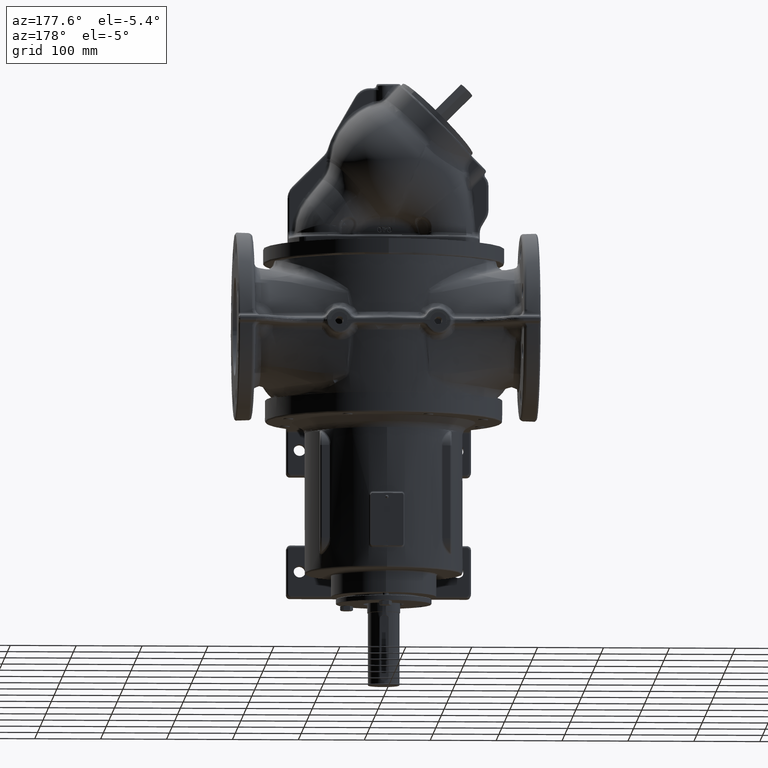
[diagram: clean part render]
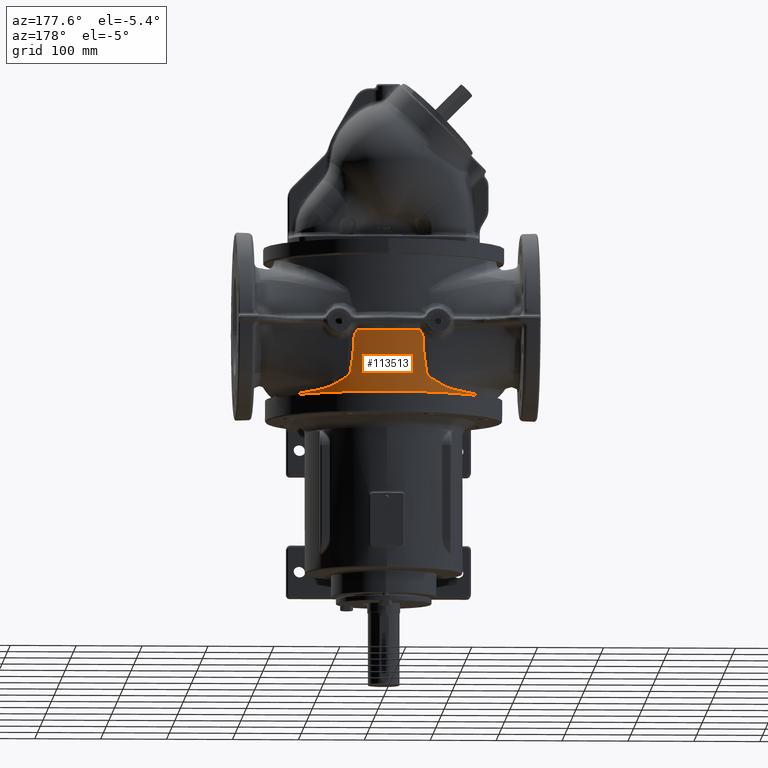
[diagram: same view with one face highlighted and labeled with its STEP entity id]
A machine part, auxiliary view. The second image highlights one B-rep face of the part: STEP entity #113513.
In plain terms, the highlighted conical surface has half-angle 2 deg.
Its self-contained STEP definition (entity closure, byte-faithful):
#27638=CARTESIAN_POINT('',(0.E0,1.E0,1.038140954703E2));
#27639=DIRECTION('',(0.E0,0.E0,-1.E0));
#27640=DIRECTION('',(-2.547546711434E-1,9.670057174240E-1,0.E0));
#27641=AXIS2_PLACEMENT_3D('',#27638,#27639,#27640);
#31481=CARTESIAN_POINT('',(-1.983678192828E-14,1.E0,1.039530150989E1));
#31482=DIRECTION('',(0.E0,0.E0,1.E0));
#31483=DIRECTION('',(8.221368527144E-1,5.692899045380E-1,0.E0));
#31484=AXIS2_PLACEMENT_3D('',#31481,#31482,#31483);
#31486=CARTESIAN_POINT('',(1.480677569481E2,1.035297416253E2,1.039530148832E1));
#31487=CARTESIAN_POINT('',(1.475254251751E2,1.043163096943E2,1.045011644710E1));
#31488=CARTESIAN_POINT('',(1.464255984966E2,1.058849517762E2,1.056487105650E1));
#31489=CARTESIAN_POINT('',(1.447297417778E2,1.082239979203E2,1.075141209266E1));
#31490=CARTESIAN_POINT('',(1.429887079367E2,1.105465706329E2,1.095118031200E1));
#31491=CARTESIAN_POINT('',(1.412031212214E2,1.128507335465E2,1.116290957452E1));
#31492=CARTESIAN_POINT('',(1.393738157057E2,1.151344156543E2,1.138523434629E1));
#31493=CARTESIAN_POINT('',(1.375015835489E2,1.173957472333E2,1.16167441E1));
#31494=CARTESIAN_POINT('',(1.355878148873E2,1.196323048213E2,1.185603792101E1));
#31495=CARTESIAN_POINT('',(1.336342347828E2,1.218415041888E2,1.210163413822E1));
#31496=CARTESIAN_POINT('',(1.316427251275E2,1.240208332420E2,1.235199499890E1));
#31497=CARTESIAN_POINT('',(1.296148119104E2,1.261683933788E2,1.260566304274E1));
#31498=CARTESIAN_POINT('',(1.275518587531E2,1.282826163366E2,1.286119038427E1));
#31499=CARTESIAN_POINT('',(1.254552200898E2,1.303620759715E2,1.311714088273E1));
#31500=CARTESIAN_POINT('',(1.233268884600E2,1.324048502695E2,1.337191475140E1));
#31501=CARTESIAN_POINT('',(1.211703711385E2,1.344078276879E2,1.362364606193E1));
#31502=CARTESIAN_POINT('',(1.189891294969E2,1.363683052550E2,1.387053268512E1));
#31503=CARTESIAN_POINT('',(1.167868146445E2,1.382837361549E2,1.411080359380E1));
#31504=CARTESIAN_POINT('',(1.145673085351E2,1.401517053443E2,1.434266370049E1));
#31505=CARTESIAN_POINT('',(1.123342568439E2,1.419703091595E2,1.456442796250E1));
#31506=CARTESIAN_POINT('',(1.108400057983E2,1.431478778889E2,1.470441007764E1));
#31507=CARTESIAN_POINT('',(1.100914868615E2,1.437282395486E2,1.477225259317E1));
#31509=CARTESIAN_POINT('',(8.055882184666E1,1.625763469896E2,2.311745866726E1));
#31510=CARTESIAN_POINT('',(8.131507298108E1,1.621836218744E2,2.273302371922E1));
#31511=CARTESIAN_POINT('',(8.275077548599E1,1.614253901205E2,2.196177772762E1));
#31512=CARTESIAN_POINT('',(8.475388651841E1,1.603387533791E2,2.104211972987E1));
#31513=CARTESIAN_POINT('',(8.662159114706E1,1.592978074730E2,2.021455266633E1));
#31514=CARTESIAN_POINT('',(8.840467220058E1,1.582792774497E2,1.948108953620E1));
#31515=CARTESIAN_POINT('',(9.013431535941E1,1.572680031810E2,1.882757197411E1));
#31516=CARTESIAN_POINT('',(9.185052297801E1,1.562418505250E2,1.824271503008E1));
#31517=CARTESIAN_POINT('',(9.360474118563E1,1.551690303805E2,1.770888971328E1));
#31518=CARTESIAN_POINT('',(9.543309044908E1,1.540241415001E2,1.721283646957E1));
#31519=CARTESIAN_POINT('',(9.735224283735E1,1.527916814392E2,1.674776617221E1));
#31520=CARTESIAN_POINT('',(9.932231177402E1,1.514924370408E2,1.632306911762E1));
#31521=CARTESIAN_POINT('',(1.012967892269E2,1.501547850942E2,1.594630131844E1));
#31522=CARTESIAN_POINT('',(1.032988003231E2,1.487614464470E2,1.560817499036E1));
#31523=CARTESIAN_POINT('',(1.053946984194E2,1.472615427189E2,1.529860498925E1));
#31524=CARTESIAN_POINT('',(1.076324282701E2,1.456120783909E2,1.501738097370E1));
#31525=CARTESIAN_POINT('',(1.092532629016E2,1.443781816296E2,1.484807868871E1));
#31526=CARTESIAN_POINT('',(1.100914868615E2,1.437282395486E2,1.477225259317E1));
#31528=CARTESIAN_POINT('',(6.374748088998E1,1.702680362641E2,3.251745815103E1));
#31529=CARTESIAN_POINT('',(6.540327731379E1,1.696064177949E2,3.147938043612E1));
#31530=CARTESIAN_POINT('',(6.888128729677E1,1.681620579315E2,2.942776280903E1));
#31531=CARTESIAN_POINT('',(7.450817490414E1,1.656182689971E2,2.631874500572E1));
#31532=CARTESIAN_POINT('',(7.849659268437E1,1.636465370573E2,2.417249091886E1));
#31533=CARTESIAN_POINT('',(8.055882184666E1,1.625763469896E2,2.311745866726E1));
#31535=CARTESIAN_POINT('',(5.773962194131E1,1.727317103777E2,4.124746156192E1));
#31536=CARTESIAN_POINT('',(5.801266371584E1,1.725900490345E2,3.989916685164E1));
#31537=CARTESIAN_POINT('',(5.891232780437E1,1.721976798242E2,3.747808543130E1));
#31538=CARTESIAN_POINT('',(6.113211746077E1,1.713066974254E2,3.441529400483E1));
#31539=CARTESIAN_POINT('',(6.284160494442E1,1.706303691549E2,3.309180012906E1));
#31540=CARTESIAN_POINT('',(6.374748088998E1,1.702680362641E2,3.251745815103E1));
#31542=CARTESIAN_POINT('',(5.192808448892E1,1.766150221783E2,9.717564902286E1));
#31543=CARTESIAN_POINT('',(5.199100973622E1,1.765252758445E2,9.522208739680E1));
#31544=CARTESIAN_POINT('',(5.213746193321E1,1.763421405349E2,9.138563459151E1));
#31545=CARTESIAN_POINT('',(5.241563476062E1,1.760567221258E2,8.583014945750E1));
#31546=CARTESIAN_POINT('',(5.274621954E1,1.757634427221E2,8.051162000434E1));
#31547=CARTESIAN_POINT('',(5.312246217119E1,1.754649930536E2,7.545744714109E1));
#31548=CARTESIAN_POINT('',(5.353754782262E1,1.751636708833E2,7.068279033932E1));
#31549=CARTESIAN_POINT('',(5.398661039667E1,1.748601858900E2,6.617449639500E1));
#31550=CARTESIAN_POINT('',(5.446516740182E1,1.745554186656E2,6.192645775070E1));
#31551=CARTESIAN_POINT('',(5.496739228963E1,1.742508159476E2,5.793521641562E1));
#31552=CARTESIAN_POINT('',(5.548917943011E1,1.739470951982E2,5.419055203639E1));
#31553=CARTESIAN_POINT('',(5.602789439394E1,1.736440543794E2,5.066887447010E1));
#31554=CARTESIAN_POINT('',(5.658200728238E1,1.733412139117E2,4.734812925083E1));
#31555=CARTESIAN_POINT('',(5.715128325884E1,1.730377731626E2,4.420871877768E1));
#31556=CARTESIAN_POINT('',(5.754221153645E1,1.728337934608E2,4.221673906877E1));
#31557=CARTESIAN_POINT('',(5.773962194131E1,1.727317103777E2,4.124746156192E1));
#31559=CARTESIAN_POINT('',(5.192808448892E1,1.766150221783E2,9.717564902286E1));
#31560=CARTESIAN_POINT('',(5.177350184140E1,1.766667515999E2,9.734097800989E1));
#31561=CARTESIAN_POINT('',(5.146773098381E1,1.767689050012E2,9.767579429879E1));
#31562=CARTESIAN_POINT('',(5.101913650876E1,1.769183547516E2,9.819080241780E1));
#31563=CARTESIAN_POINT('',(5.058134391587E1,1.770638738523E2,9.871794011660E1));
#31564=CARTESIAN_POINT('',(5.015485106335E1,1.772053961053E2,9.925678754944E1));
#31565=CARTESIAN_POINT('',(4.974017073229E1,1.773428498915E2,9.980682952100E1));
#31566=CARTESIAN_POINT('',(4.933774450757E1,1.774761863565E2,1.003675584492E2));
#31567=CARTESIAN_POINT('',(4.894800440633E1,1.776053596805E2,1.009384406972E2));
#31568=CARTESIAN_POINT('',(4.857135100216E1,1.777303336431E2,1.015189418427E2));
#31569=CARTESIAN_POINT('',(4.820816380848E1,1.778510745133E2,1.021084265038E2));
#31570=CARTESIAN_POINT('',(4.785876464538E1,1.779675660596E2,1.027063183916E2));
#31571=CARTESIAN_POINT('',(4.763533142734E1,1.780423503331E2,1.031099247003E2));
#31572=CARTESIAN_POINT('',(4.752595895074E1,1.780790480567E2,1.033130237375E2));
#31574=CARTESIAN_POINT('',(4.752595895074E1,1.780790480567E2,1.033130237375E2));
#31575=CARTESIAN_POINT('',(4.751677297235E1,1.780821301960E2,1.033300809155E2));
#31576=CARTESIAN_POINT('',(4.749748247342E1,1.780885165351E2,1.033635621876E2));
#31577=CARTESIAN_POINT('',(4.746573501451E1,1.780987798287E2,1.034119970748E2));
#31578=CARTESIAN_POINT('',(4.743136194723E1,1.781096636263E2,1.034583184133E2));
#31579=CARTESIAN_POINT('',(4.739450848656E1,1.781211211541E2,1.035023527401E2));
#31580=CARTESIAN_POINT('',(4.735535238567E1,1.781330962627E2,1.035439074399E2));
#31581=CARTESIAN_POINT('',(4.731406024354E1,1.781455376551E2,1.035828395951E2));
#31582=CARTESIAN_POINT('',(4.727077835755E1,1.781584011299E2,1.036190504092E2));
#31583=CARTESIAN_POINT('',(4.722565121060E1,1.781716426945E2,1.036524312992E2));
#31584=CARTESIAN_POINT('',(4.717886356410E1,1.781852079985E2,1.036828811739E2));
#31585=CARTESIAN_POINT('',(4.713060382825E1,1.781990418532E2,1.037102980772E2));
#31586=CARTESIAN_POINT('',(4.708104296526E1,1.782130952589E2,1.037346180038E2));
#31587=CARTESIAN_POINT('',(4.703033092999E1,1.782273257668E2,1.037557990995E2));
#31588=CARTESIAN_POINT('',(4.697861159970E1,1.782416922683E2,1.037737877827E2));
#31589=CARTESIAN_POINT('',(4.692610012887E1,1.782561350336E2,1.037885328667E2));
#31590=CARTESIAN_POINT('',(4.687301409556E1,1.782705943255E2,1.037999933297E2));
#31591=CARTESIAN_POINT('',(4.681958260547E1,1.782850083525E2,1.038081479508E2));
#31592=CARTESIAN_POINT('',(4.676602436064E1,1.782993199298E2,1.038130191186E2));
#31593=CARTESIAN_POINT('',(4.673044720526E1,1.783087371647E2,1.038140948897E2));
#31594=CARTESIAN_POINT('',(4.671267307228E1,1.783134197275E2,1.038140954789E2));
#31596=CARTESIAN_POINT('',(-4.671267306739E1,1.783134197289E2,
1.038140954806E2));
#31597=CARTESIAN_POINT('',(-4.673055797267E1,1.783087079939E2,
1.038140951732E2));
#31598=CARTESIAN_POINT('',(-4.676633350192E1,1.782992380467E2,
1.038130088858E2));
#31599=CARTESIAN_POINT('',(-4.682012239985E1,1.782848638550E2,
1.038080936270E2));
#31600=CARTESIAN_POINT('',(-4.687371002527E1,1.782704057847E2,
1.037998676824E2));
#31601=CARTESIAN_POINT('',(-4.692689186124E1,1.782559183161E2,
1.037883356950E2));
#31602=CARTESIAN_POINT('',(-4.697943729076E1,1.782414640582E2,
1.037735288262E2));
#31603=CARTESIAN_POINT('',(-4.703113682648E1,1.782271006340E2,
1.037554871508E2));
#31604=CARTESIAN_POINT('',(-4.708184815095E1,1.782128682649E2,
1.037342561187E2));
#31605=CARTESIAN_POINT('',(-4.713141943380E1,1.781988093681E2,
1.037098676723E2));
#31606=CARTESIAN_POINT('',(-4.717967348345E1,1.781849744482E2,
1.036823861166E2));
#31607=CARTESIAN_POINT('',(-4.722642039750E1,1.781714183889E2,
1.036518981212E2));
#31608=CARTESIAN_POINT('',(-4.727148031824E1,1.781581936197E2,
1.036184915018E2));
#31609=CARTESIAN_POINT('',(-4.731470833086E1,1.781453437798E2,
1.035822649231E2));
#31610=CARTESIAN_POINT('',(-4.735595385195E1,1.781329137095E2,
1.035433057413E2));
#31611=CARTESIAN_POINT('',(-4.739504130963E1,1.781209568121E2,
1.035017507821E2));
#31612=CARTESIAN_POINT('',(-4.743179228203E1,1.781095285662E2,
1.034577706124E2));
#31613=CARTESIAN_POINT('',(-4.746603428200E1,1.780986834408E2,
1.034115498460E2));
#31614=CARTESIAN_POINT('',(-4.749763777131E1,1.780884651770E2,
1.033632940073E2));
#31615=CARTESIAN_POINT('',(-4.751682546319E1,1.780821125637E2,
1.033299829105E2));
#31616=CARTESIAN_POINT('',(-4.752595887562E1,1.780790480816E2,
1.033130238744E2));
#31618=CARTESIAN_POINT('',(-4.752595887562E1,1.780790480816E2,
1.033130238744E2));
#31619=CARTESIAN_POINT('',(-4.763533788234E1,1.780423481684E2,
1.031099127300E2));
#31620=CARTESIAN_POINT('',(-4.785878365166E1,1.779675597053E2,
1.027062844798E2));
#31621=CARTESIAN_POINT('',(-4.820819923636E1,1.778510627163E2,
1.021083670771E2));
#31622=CARTESIAN_POINT('',(-4.857140006003E1,1.777303173497E2,
1.015188639764E2));
#31623=CARTESIAN_POINT('',(-4.894806384944E1,1.776053399701E2,
1.009383512284E2));
#31624=CARTESIAN_POINT('',(-4.933781063247E1,1.774761644471E2,
1.003674639465E2));
#31625=CARTESIAN_POINT('',(-4.974023931947E1,1.773428271650E2,
9.980673634998E1));
#31626=CARTESIAN_POINT('',(-5.015491740113E1,1.772053741065E2,
9.925670183042E1));
#31627=CARTESIAN_POINT('',(-5.058140280302E1,1.770638542945E2,
9.871786770955E1));
#31628=CARTESIAN_POINT('',(-5.101918230941E1,1.769183395068E2,
9.819074886672E1));
#31629=CARTESIAN_POINT('',(-5.146775764960E1,1.767688960971E2,
9.767576477870E1));
#31630=CARTESIAN_POINT('',(-5.177351146285E1,1.766667483815E2,
9.734096772194E1));
#31631=CARTESIAN_POINT('',(-5.192808444382E1,1.766150221959E2,
9.717564908023E1));
#31633=CARTESIAN_POINT('',(-5.192808444382E1,1.766150221959E2,
9.717564908023E1));
#31634=CARTESIAN_POINT('',(-5.199100865229E1,1.765252771029E2,
9.522211314907E1));
#31635=CARTESIAN_POINT('',(-5.213745862597E1,1.763421432213E2,
9.138568128614E1));
#31636=CARTESIAN_POINT('',(-5.241563907538E1,1.760567185604E2,
8.583008688518E1));
#31637=CARTESIAN_POINT('',(-5.274623019001E1,1.757634335472E2,
8.051145648567E1));
#31638=CARTESIAN_POINT('',(-5.312247312148E1,1.754649862223E2,
7.545735151603E1));
#31639=CARTESIAN_POINT('',(-5.353755045229E1,1.751636683080E2,
7.068274210210E1));
#31640=CARTESIAN_POINT('',(-5.398661339922E1,1.748601841947E2,
6.617447554788E1));
#31641=CARTESIAN_POINT('',(-5.446516149988E1,1.745554223057E2,
6.192650725140E1));
#31642=CARTESIAN_POINT('',(-5.496736138390E1,1.742508345626E2,
5.793545766112E1));
#31643=CARTESIAN_POINT('',(-5.548913112438E1,1.739471238244E2,
5.419091058176E1));
#31644=CARTESIAN_POINT('',(-5.602782820294E1,1.736440900685E2,
5.066926198338E1));
#31645=CARTESIAN_POINT('',(-5.658194146762E1,1.733412479593E2,
4.734846683266E1));
#31646=CARTESIAN_POINT('',(-5.715124838208E1,1.730377926274E2,
4.420893238991E1));
#31647=CARTESIAN_POINT('',(-5.754218049347E1,1.728338066560E2,
4.221681417840E1));
#31648=CARTESIAN_POINT('',(-5.773960682088E1,1.727317153197E2,
4.124745771574E1));
#31650=CARTESIAN_POINT('',(-5.773960682088E1,1.727317153197E2,
4.124745771574E1));
#31651=CARTESIAN_POINT('',(-5.785159671893E1,1.726737593155E2,
4.069648813520E1));
#31652=CARTESIAN_POINT('',(-5.813357664477E1,1.725406124422E2,
3.966349411794E1));
#31653=CARTESIAN_POINT('',(-5.865374993676E1,1.723148471576E2,
3.834400614851E1));
#31654=CARTESIAN_POINT('',(-5.927584224220E1,1.720559057838E2,
3.713023637532E1));
#31655=CARTESIAN_POINT('',(-6.005490888181E1,1.717394772185E2,
3.591952534038E1));
#31656=CARTESIAN_POINT('',(-6.104607843995E1,1.713432106586E2,
3.471088666091E1));
#31657=CARTESIAN_POINT('',(-6.222743484413E1,1.708722427828E2,
3.353963052617E1));
#31658=CARTESIAN_POINT('',(-6.321506713741E1,1.704807741170E2,
3.285213719584E1));
#31659=CARTESIAN_POINT('',(-6.374715387076E1,1.702681636879E2,
3.251757419483E1));
#31661=CARTESIAN_POINT('',(-6.374715387076E1,1.702681636879E2,
3.251757419483E1));
#31662=CARTESIAN_POINT('',(-6.540450966600E1,1.696059275176E2,
3.147851957847E1));
#31663=CARTESIAN_POINT('',(-6.888354604011E1,1.681610849221E2,
2.942650159443E1));
#31664=CARTESIAN_POINT('',(-7.451035538682E1,1.656172257307E2,
2.631757886256E1));
#31665=CARTESIAN_POINT('',(-7.849750461193E1,1.636460637931E2,
2.417201130123E1));
#31666=CARTESIAN_POINT('',(-8.055882131247E1,1.625763466446E2,
2.311744301201E1));
#31668=CARTESIAN_POINT('',(-8.055882131247E1,1.625763466446E2,
2.311744301201E1));
#31669=CARTESIAN_POINT('',(-8.133799609739E1,1.621717292303E2,
2.272119184284E1));
#31670=CARTESIAN_POINT('',(-8.281923583750E1,1.613891205195E2,
2.192805476090E1));
#31671=CARTESIAN_POINT('',(-8.488986067728E1,1.602642439052E2,
2.097978425462E1));
#31672=CARTESIAN_POINT('',(-8.682291973828E1,1.591843800301E2,
2.012816038829E1));
#31673=CARTESIAN_POINT('',(-8.868225720779E1,1.581189883715E2,
1.937083196365E1));
#31674=CARTESIAN_POINT('',(-9.052939133449E1,1.570344686375E2,
1.868540414858E1));
#31675=CARTESIAN_POINT('',(-9.241298133441E1,1.559013946238E2,
1.806251000114E1));
#31676=CARTESIAN_POINT('',(-9.437124231962E1,1.546933916460E2,
1.749220163586E1));
#31677=CARTESIAN_POINT('',(-9.640815341380E1,1.534028566963E2,
1.696847103329E1));
#31678=CARTESIAN_POINT('',(-9.849745450261E1,1.520414178178E2,
1.649362681526E1));
#31679=CARTESIAN_POINT('',(-1.005816421336E2,1.506440825526E2,
1.607666961097E1));
#31680=CARTESIAN_POINT('',(-1.026895275383E2,1.491905010173E2,
1.570547957992E1));
#31681=CARTESIAN_POINT('',(-1.048693741390E2,1.476415556186E2,
1.537217115510E1));
#31682=CARTESIAN_POINT('',(-1.068665094724E2,1.461794482496E2,
1.511032623532E1));
#31683=CARTESIAN_POINT('',(-1.085951117851E2,1.448811250791E2,
1.491635608757E1));
#31684=CARTESIAN_POINT('',(-1.096165597991E2,1.440965197178E2,
1.481531184987E1));
#31685=CARTESIAN_POINT('',(-1.100914874271E2,1.437282392196E2,
1.477225502440E1));
#31687=CARTESIAN_POINT('',(-1.480677568235E2,1.035297416450E2,
1.039530148410E1));
#31688=CARTESIAN_POINT('',(-1.475254017238E2,1.043163437073E2,
1.045012093836E1));
#31689=CARTESIAN_POINT('',(-1.464255299160E2,1.058850492684E2,
1.056488296006E1));
#31690=CARTESIAN_POINT('',(-1.447296132239E2,1.082241733085E2,
1.075142990404E1));
#31691=CARTESIAN_POINT('',(-1.429885196765E2,1.105468184127E2,
1.095120098580E1));
#31692=CARTESIAN_POINT('',(-1.412028643977E2,1.128510603352E2,
1.116293762990E1));
#31693=CARTESIAN_POINT('',(-1.393734709646E2,1.151348402732E2,
1.138527648045E1));
#31694=CARTESIAN_POINT('',(-1.375011185581E2,1.173963014821E2,
1.161680567535E1));
#31695=CARTESIAN_POINT('',(-1.355872097249E2,1.196330023980E2,
1.185611728028E1));
#31696=CARTESIAN_POINT('',(-1.336334828012E2,1.218423422593E2,
1.210172959932E1));
#31697=CARTESIAN_POINT('',(-1.316418348360E2,1.240217930486E2,
1.235210235185E1));
#31698=CARTESIAN_POINT('',(-1.296137474946E2,1.261695036568E2,
1.260578702253E1));
#31699=CARTESIAN_POINT('',(-1.275505933105E2,1.282838943118E2,
1.286133768502E1));
#31700=CARTESIAN_POINT('',(-1.254536783249E2,1.303635824601E2,
1.311732908378E1));
#31701=CARTESIAN_POINT('',(-1.233252176858E2,1.324064284535E2,
1.337212108622E1));
#31702=CARTESIAN_POINT('',(-1.211687078081E2,1.344093471797E2,
1.362385176587E1));
#31703=CARTESIAN_POINT('',(-1.189875969357E2,1.363696592234E2,
1.387072347995E1));
#31704=CARTESIAN_POINT('',(-1.167855212185E2,1.382848409104E2,
1.411096397200E1));
#31705=CARTESIAN_POINT('',(-1.145663538701E2,1.401524930214E2,
1.434277770137E1));
#31706=CARTESIAN_POINT('',(-1.123337331306E2,1.419707244139E2,
1.456448503703E1));
#31707=CARTESIAN_POINT('',(-1.108398226724E2,1.431480210884E2,
1.470443196242E1));
#31708=CARTESIAN_POINT('',(-1.100914874271E2,1.437282392196E2,
1.477225502440E1));
#66954=VERTEX_POINT('',#31509);
#66955=VERTEX_POINT('',#31526);
#66957=VERTEX_POINT('',#31528);
#66958=VERTEX_POINT('',#31535);
#66970=VERTEX_POINT('',#31668);
#66971=VERTEX_POINT('',#31685);
#66972=VERTEX_POINT('',#31661);
#66973=VERTEX_POINT('',#31650);
#66974=VERTEX_POINT('',#31542);
#66975=VERTEX_POINT('',#31633);
#66980=CARTESIAN_POINT('',(1.480677565860E2,1.035297415311E2,1.039530150989E1));
#66981=CARTESIAN_POINT('',(-1.480677565232E2,1.035297416218E2,
1.039530150989E1));
#66982=VERTEX_POINT('',#66980);
#66983=VERTEX_POINT('',#66981);
#67193=VERTEX_POINT('',#31574);
#67194=VERTEX_POINT('',#31594);
#67355=VERTEX_POINT('',#31596);
#67356=VERTEX_POINT('',#31616);
#113476=CARTESIAN_POINT('',(-1.411653057791E-14,1.E0,5.710469849151E1));
#113477=DIRECTION('',(0.E0,0.E0,1.E0));
#113478=DIRECTION('',(1.E0,0.E0,0.E0));
#113479=AXIS2_PLACEMENT_3D('',#113476,#113477,#113478);
#113480=CONICAL_SURFACE('',#113479,1.817322342417E2,2.E0);
#113482=ORIENTED_EDGE('',*,*,#113481,.F.);
#113484=ORIENTED_EDGE('',*,*,#113483,.T.);
#113486=ORIENTED_EDGE('',*,*,#113485,.F.);
#113488=ORIENTED_EDGE('',*,*,#113487,.F.);
#113490=ORIENTED_EDGE('',*,*,#113489,.F.);
#113491=ORIENTED_EDGE('',*,*,#113466,.F.);
#113493=ORIENTED_EDGE('',*,*,#113492,.T.);
#113495=ORIENTED_EDGE('',*,*,#113494,.T.);
#113496=ORIENTED_EDGE('',*,*,#111445,.F.);
#113498=ORIENTED_EDGE('',*,*,#113497,.T.);
#113500=ORIENTED_EDGE('',*,*,#113499,.T.);
#113502=ORIENTED_EDGE('',*,*,#113501,.T.);
#113504=ORIENTED_EDGE('',*,*,#113503,.T.);
#113506=ORIENTED_EDGE('',*,*,#113505,.T.);
#113508=ORIENTED_EDGE('',*,*,#113507,.T.);
#113510=ORIENTED_EDGE('',*,*,#113509,.F.);
#113511=EDGE_LOOP('',(#113482,#113484,#113486,#113488,#113490,#113491,#113493,
#113495,#113496,#113498,#113500,#113502,#113504,#113506,#113508,#113510));
#113512=FACE_OUTER_BOUND('',#113511,.F.);
#113513=ADVANCED_FACE('',(#113512),#113480,.T.);
#27642=CIRCLE('',#27641,1.833633623034E2);
#31485=CIRCLE('',#31484,1.801011061566E2);
#31508=B_SPLINE_CURVE_WITH_KNOTS('',3,(#31486,#31487,#31488,#31489,#31490,
#31491,#31492,#31493,#31494,#31495,#31496,#31497,#31498,#31499,#31500,#31501,
#31502,#31503,#31504,#31505,#31506,#31507),.UNSPECIFIED.,.F.,.F.,(4,1,1,1,1,1,1,
1,1,1,1,1,1,1,1,1,1,1,1,4),(0.E0,5.263157894737E-2,1.052631578947E-1,
1.578947368421E-1,2.105263157895E-1,2.631578947368E-1,3.157894736842E-1,
3.684210526316E-1,4.210526315789E-1,4.736842105263E-1,5.263157894737E-1,
5.789473684211E-1,6.315789473684E-1,6.842105263158E-1,7.368421052632E-1,
7.894736842105E-1,8.421052631579E-1,8.947368421053E-1,9.473684210526E-1,1.E0),
.UNSPECIFIED.);
#31527=B_SPLINE_CURVE_WITH_KNOTS('',3,(#31509,#31510,#31511,#31512,#31513,
#31514,#31515,#31516,#31517,#31518,#31519,#31520,#31521,#31522,#31523,#31524,
#31525,#31526),.UNSPECIFIED.,.F.,.F.,(4,1,1,1,1,1,1,1,1,1,1,1,1,1,1,4),(0.E0,
6.666666666667E-2,1.333333333333E-1,2.E-1,2.666666666667E-1,3.333333333333E-1,
4.E-1,4.666666666667E-1,5.333333333333E-1,6.E-1,6.666666666667E-1,
7.333333333333E-1,8.E-1,8.666666666667E-1,9.333333333333E-1,1.E0),
.UNSPECIFIED.);
#31534=B_SPLINE_CURVE_WITH_KNOTS('',3,(#31528,#31529,#31530,#31531,#31532,
#31533),.UNSPECIFIED.,.F.,.F.,(4,1,1,4),(0.E0,3.333333333333E-1,
6.666666666667E-1,1.E0),.UNSPECIFIED.);
#31541=B_SPLINE_CURVE_WITH_KNOTS('',3,(#31535,#31536,#31537,#31538,#31539,
#31540),.UNSPECIFIED.,.F.,.F.,(4,1,1,4),(0.E0,3.333333333333E-1,
6.666666666667E-1,1.E0),.UNSPECIFIED.);
#31558=B_SPLINE_CURVE_WITH_KNOTS('',3,(#31542,#31543,#31544,#31545,#31546,
#31547,#31548,#31549,#31550,#31551,#31552,#31553,#31554,#31555,#31556,#31557),
.UNSPECIFIED.,.F.,.F.,(4,1,1,1,1,1,1,1,1,1,1,1,1,4),(0.E0,7.692307692308E-2,
1.538461538462E-1,2.307692307692E-1,3.076923076923E-1,3.846153846154E-1,
4.615384615385E-1,5.384615384615E-1,6.153846153846E-1,6.923076923077E-1,
7.692307692308E-1,8.461538461538E-1,9.230769230769E-1,1.E0),.UNSPECIFIED.);
#31573=B_SPLINE_CURVE_WITH_KNOTS('',3,(#31559,#31560,#31561,#31562,#31563,
#31564,#31565,#31566,#31567,#31568,#31569,#31570,#31571,#31572),.UNSPECIFIED.,
.F.,.F.,(4,1,1,1,1,1,1,1,1,1,1,4),(0.E0,9.090909090909E-2,1.818181818182E-1,
2.727272727273E-1,3.636363636364E-1,4.545454545455E-1,5.454545454545E-1,
6.363636363636E-1,7.272727272727E-1,8.181818181818E-1,9.090909090909E-1,1.E0),
.UNSPECIFIED.);
#31595=B_SPLINE_CURVE_WITH_KNOTS('',3,(#31574,#31575,#31576,#31577,#31578,
#31579,#31580,#31581,#31582,#31583,#31584,#31585,#31586,#31587,#31588,#31589,
#31590,#31591,#31592,#31593,#31594),.UNSPECIFIED.,.F.,.F.,(4,1,1,1,1,1,1,1,1,1,
1,1,1,1,1,1,1,1,4),(0.E0,5.555555555556E-2,1.111111111111E-1,1.666666666667E-1,
2.222222222222E-1,2.777777777778E-1,3.333333333333E-1,3.888888888889E-1,
4.444444444444E-1,5.E-1,5.555555555556E-1,6.111111111111E-1,6.666666666667E-1,
7.222222222222E-1,7.777777777778E-1,8.333333333333E-1,8.888888888889E-1,
9.444444444444E-1,1.E0),.UNSPECIFIED.);
#31617=B_SPLINE_CURVE_WITH_KNOTS('',3,(#31596,#31597,#31598,#31599,#31600,
#31601,#31602,#31603,#31604,#31605,#31606,#31607,#31608,#31609,#31610,#31611,
#31612,#31613,#31614,#31615,#31616),.UNSPECIFIED.,.F.,.F.,(4,1,1,1,1,1,1,1,1,1,
1,1,1,1,1,1,1,1,4),(0.E0,5.555555555556E-2,1.111111111111E-1,1.666666666667E-1,
2.222222222222E-1,2.777777777778E-1,3.333333333333E-1,3.888888888889E-1,
4.444444444444E-1,5.E-1,5.555555555556E-1,6.111111111111E-1,6.666666666667E-1,
7.222222222222E-1,7.777777777778E-1,8.333333333333E-1,8.888888888889E-1,
9.444444444444E-1,1.E0),.UNSPECIFIED.);
#31632=B_SPLINE_CURVE_WITH_KNOTS('',3,(#31618,#31619,#31620,#31621,#31622,
#31623,#31624,#31625,#31626,#31627,#31628,#31629,#31630,#31631),.UNSPECIFIED.,
.F.,.F.,(4,1,1,1,1,1,1,1,1,1,1,4),(0.E0,9.090909090909E-2,1.818181818182E-1,
2.727272727273E-1,3.636363636364E-1,4.545454545455E-1,5.454545454545E-1,
6.363636363636E-1,7.272727272727E-1,8.181818181818E-1,9.090909090909E-1,1.E0),
.UNSPECIFIED.);
#31649=B_SPLINE_CURVE_WITH_KNOTS('',3,(#31633,#31634,#31635,#31636,#31637,
#31638,#31639,#31640,#31641,#31642,#31643,#31644,#31645,#31646,#31647,#31648),
.UNSPECIFIED.,.F.,.F.,(4,1,1,1,1,1,1,1,1,1,1,1,1,4),(0.E0,7.692307692308E-2,
1.538461538462E-1,2.307692307692E-1,3.076923076923E-1,3.846153846154E-1,
4.615384615385E-1,5.384615384615E-1,6.153846153846E-1,6.923076923077E-1,
7.692307692308E-1,8.461538461538E-1,9.230769230769E-1,1.E0),.UNSPECIFIED.);
#31660=B_SPLINE_CURVE_WITH_KNOTS('',3,(#31650,#31651,#31652,#31653,#31654,
#31655,#31656,#31657,#31658,#31659),.UNSPECIFIED.,.F.,.F.,(4,1,1,1,1,1,1,4),(
0.E0,1.428571428571E-1,2.857142857143E-1,4.285714285714E-1,5.714285714286E-1,
7.142857142857E-1,8.571428571429E-1,1.E0),.UNSPECIFIED.);
#31667=B_SPLINE_CURVE_WITH_KNOTS('',3,(#31661,#31662,#31663,#31664,#31665,
#31666),.UNSPECIFIED.,.F.,.F.,(4,1,1,4),(0.E0,3.333333333333E-1,
6.666666666667E-1,1.E0),.UNSPECIFIED.);
#31686=B_SPLINE_CURVE_WITH_KNOTS('',3,(#31668,#31669,#31670,#31671,#31672,
#31673,#31674,#31675,#31676,#31677,#31678,#31679,#31680,#31681,#31682,#31683,
#31684,#31685),.UNSPECIFIED.,.F.,.F.,(4,1,1,1,1,1,1,1,1,1,1,1,1,1,1,4),(0.E0,
6.666666666667E-2,1.333333333333E-1,2.E-1,2.666666666667E-1,3.333333333333E-1,
4.E-1,4.666666666667E-1,5.333333333333E-1,6.E-1,6.666666666667E-1,
7.333333333333E-1,8.E-1,8.666666666667E-1,9.333333333333E-1,1.E0),
.UNSPECIFIED.);
#31709=B_SPLINE_CURVE_WITH_KNOTS('',3,(#31687,#31688,#31689,#31690,#31691,
#31692,#31693,#31694,#31695,#31696,#31697,#31698,#31699,#31700,#31701,#31702,
#31703,#31704,#31705,#31706,#31707,#31708),.UNSPECIFIED.,.F.,.F.,(4,1,1,1,1,1,1,
1,1,1,1,1,1,1,1,1,1,1,1,4),(0.E0,5.263157894737E-2,1.052631578947E-1,
1.578947368421E-1,2.105263157895E-1,2.631578947368E-1,3.157894736842E-1,
3.684210526316E-1,4.210526315789E-1,4.736842105263E-1,5.263157894737E-1,
5.789473684211E-1,6.315789473684E-1,6.842105263158E-1,7.368421052632E-1,
7.894736842105E-1,8.421052631579E-1,8.947368421053E-1,9.473684210526E-1,1.E0),
.UNSPECIFIED.);
#111445=EDGE_CURVE('',#67355,#67194,#27642,.T.);
#113466=EDGE_CURVE('',#66974,#66958,#31558,.T.);
#113481=EDGE_CURVE('',#66982,#66983,#31485,.T.);
#113483=EDGE_CURVE('',#66982,#66955,#31508,.T.);
#113485=EDGE_CURVE('',#66954,#66955,#31527,.T.);
#113487=EDGE_CURVE('',#66957,#66954,#31534,.T.);
#113489=EDGE_CURVE('',#66958,#66957,#31541,.T.);
#113492=EDGE_CURVE('',#66974,#67193,#31573,.T.);
#113494=EDGE_CURVE('',#67193,#67194,#31595,.T.);
#113497=EDGE_CURVE('',#67355,#67356,#31617,.T.);
#113499=EDGE_CURVE('',#67356,#66975,#31632,.T.);
#113501=EDGE_CURVE('',#66975,#66973,#31649,.T.);
#113503=EDGE_CURVE('',#66973,#66972,#31660,.T.);
#113505=EDGE_CURVE('',#66972,#66970,#31667,.T.);
#113507=EDGE_CURVE('',#66970,#66971,#31686,.T.);
#113509=EDGE_CURVE('',#66983,#66971,#31709,.T.);